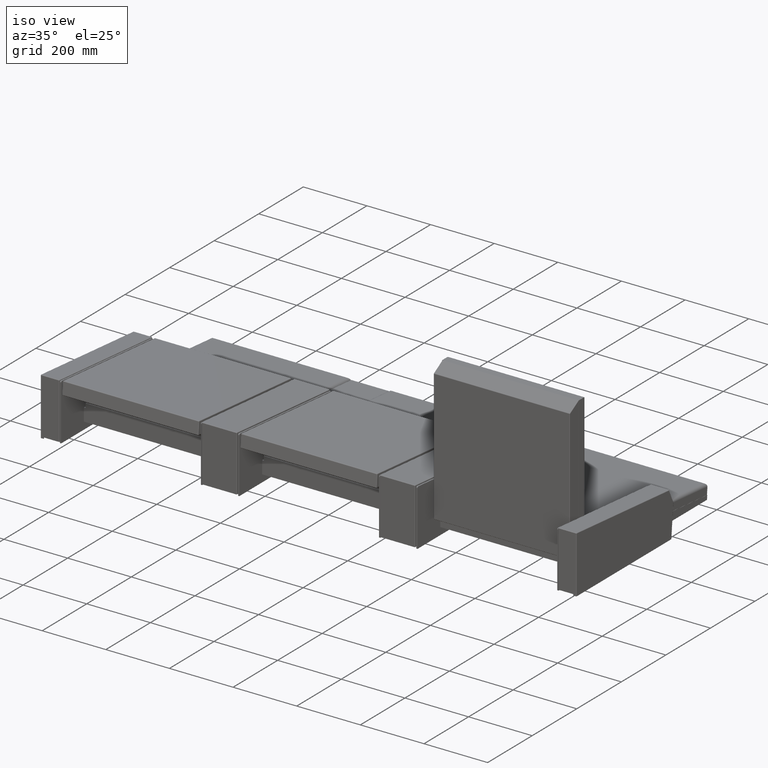
[diagram: clean part render]
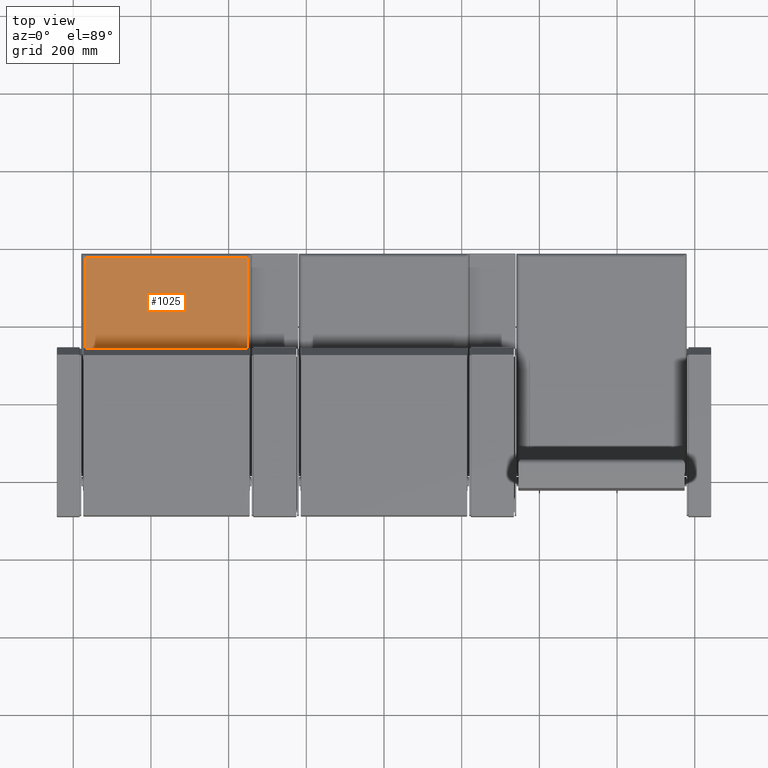
[diagram: tour spotlight — one face highlighted and labeled with its STEP entity id]
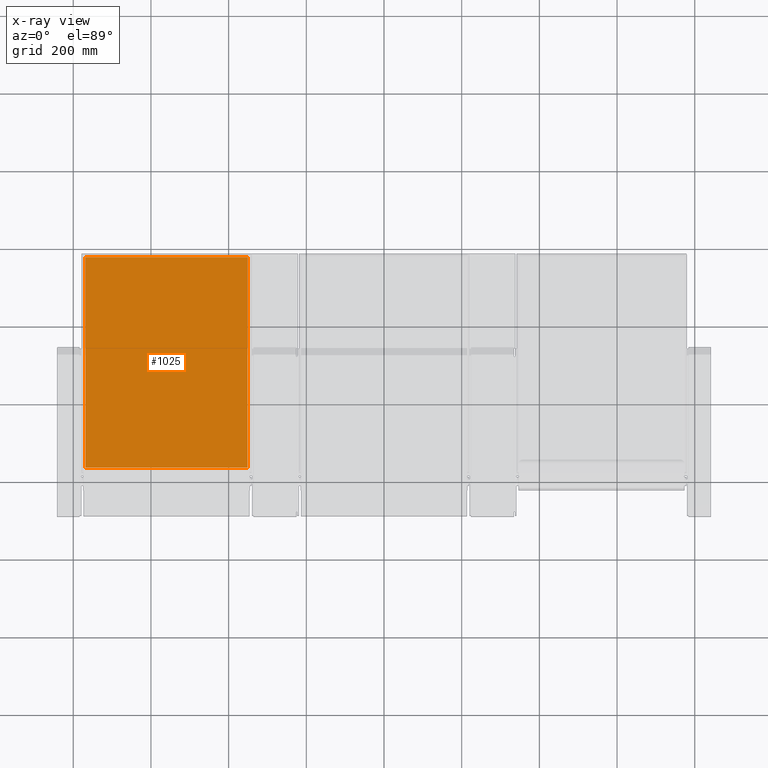
[diagram: x-ray of the same camera — body ghosted, this tour face saturated]
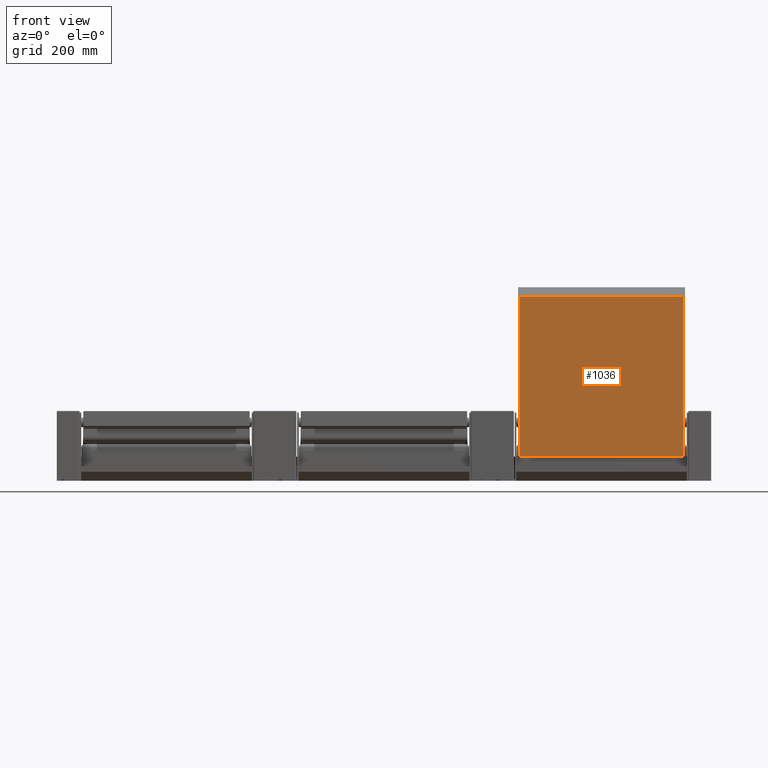
[diagram: tour spotlight — one face highlighted and labeled with its STEP entity id]
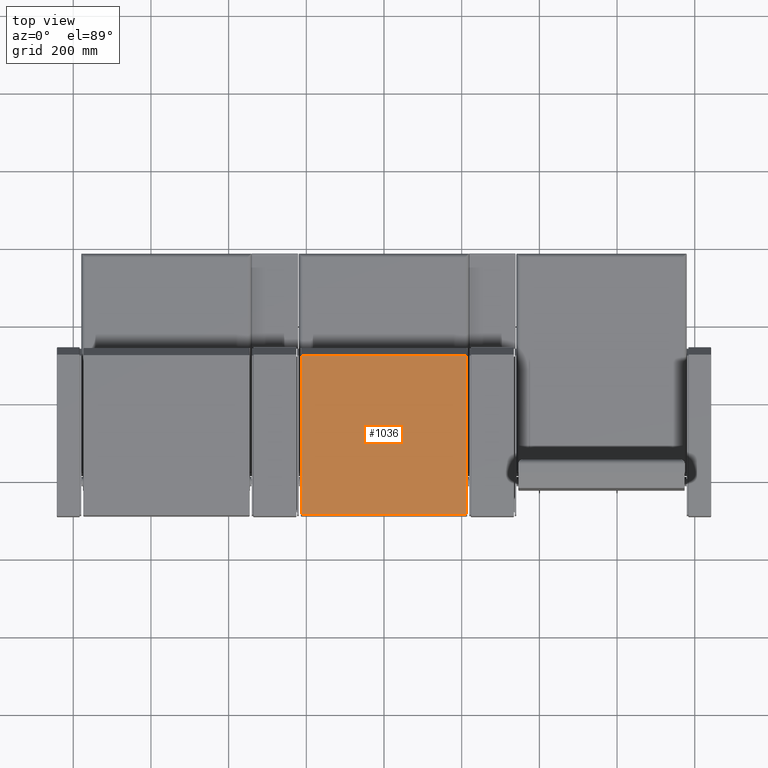
[diagram: tour spotlight — one face highlighted and labeled with its STEP entity id]
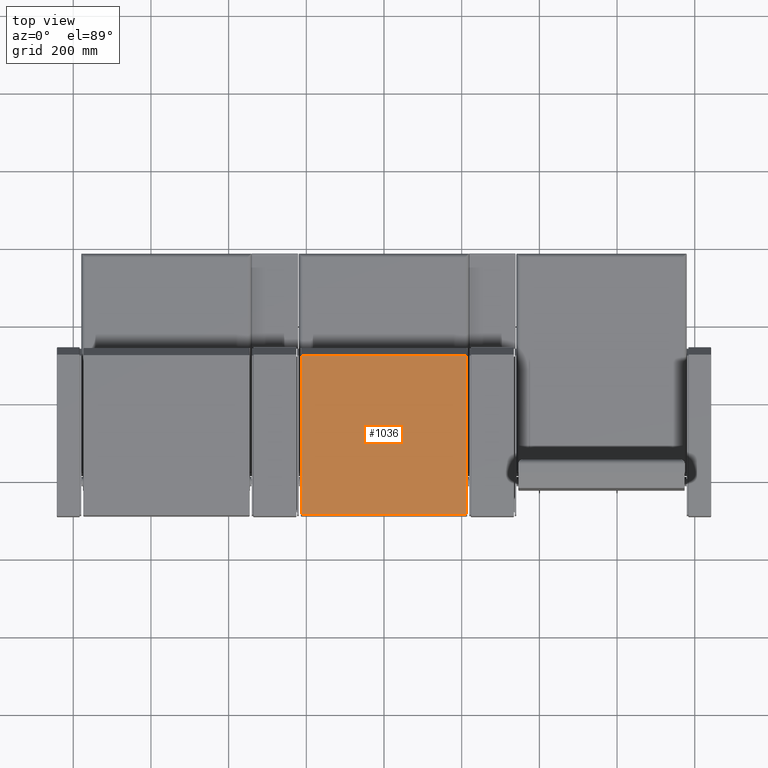
[diagram: tour spotlight — one face highlighted and labeled with its STEP entity id]
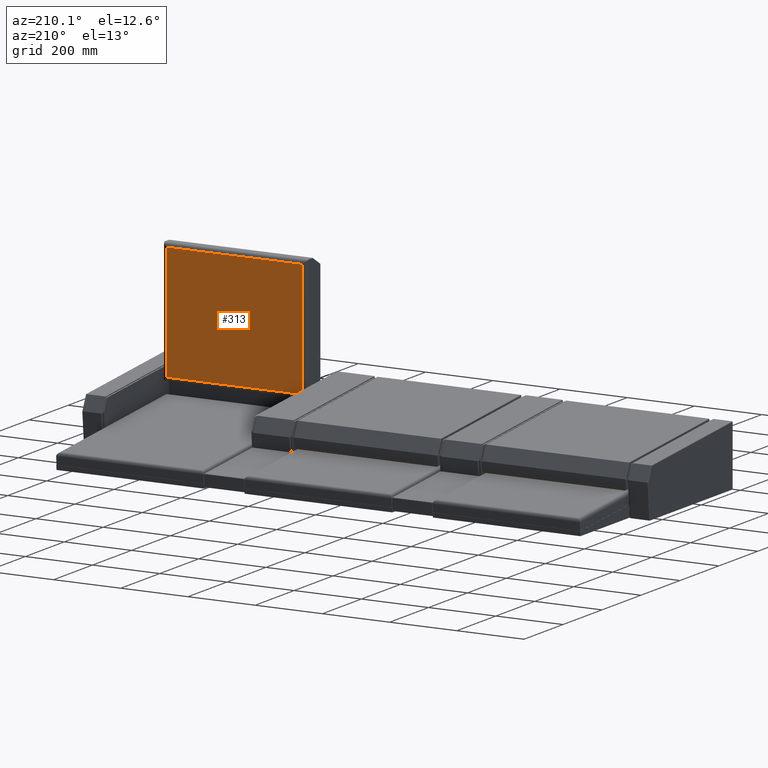
[diagram: tour spotlight — one face highlighted and labeled with its STEP entity id]
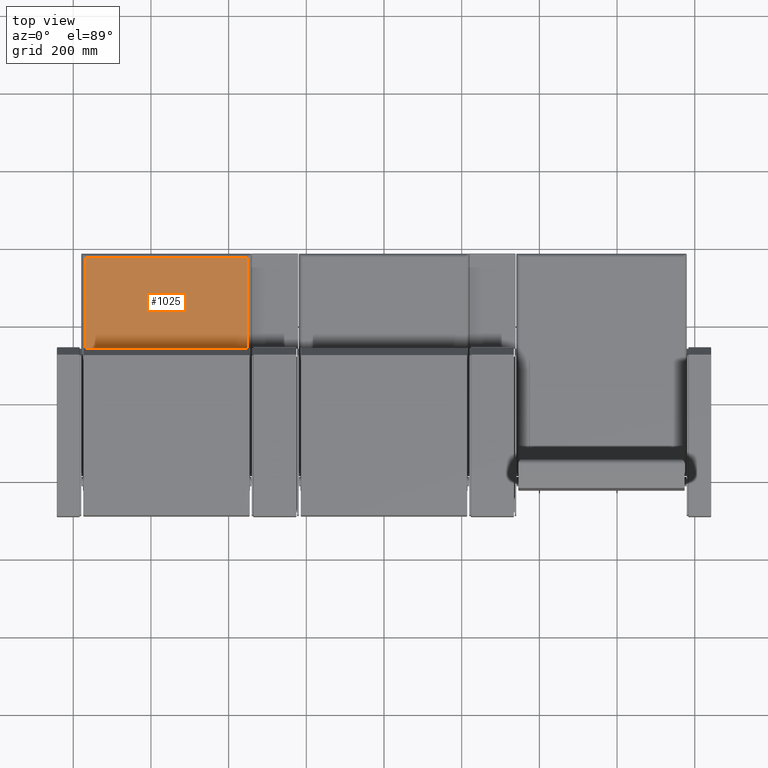
[diagram: tour spotlight — one face highlighted and labeled with its STEP entity id]
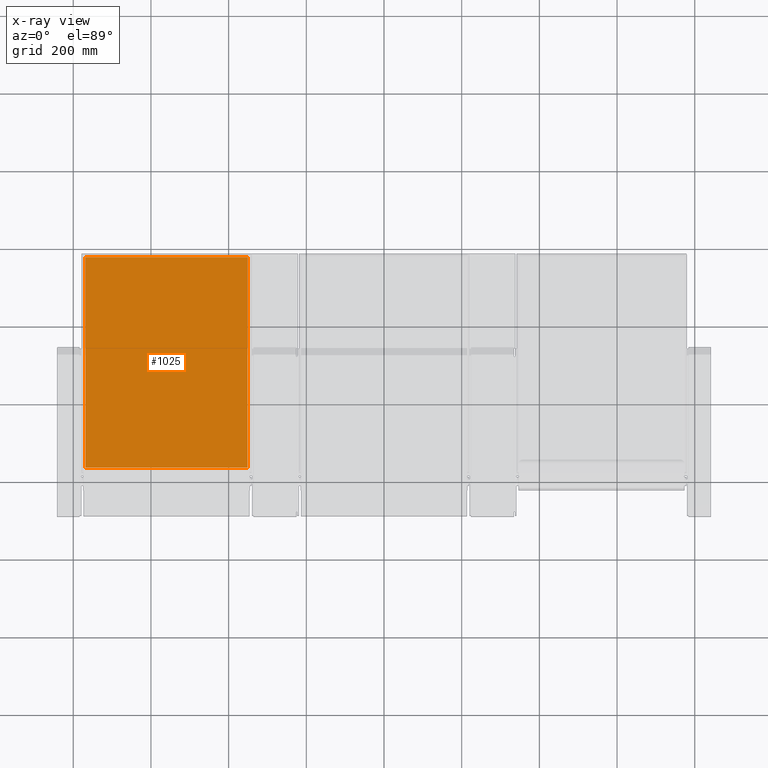
[diagram: x-ray of the same camera — body ghosted, this tour face saturated]
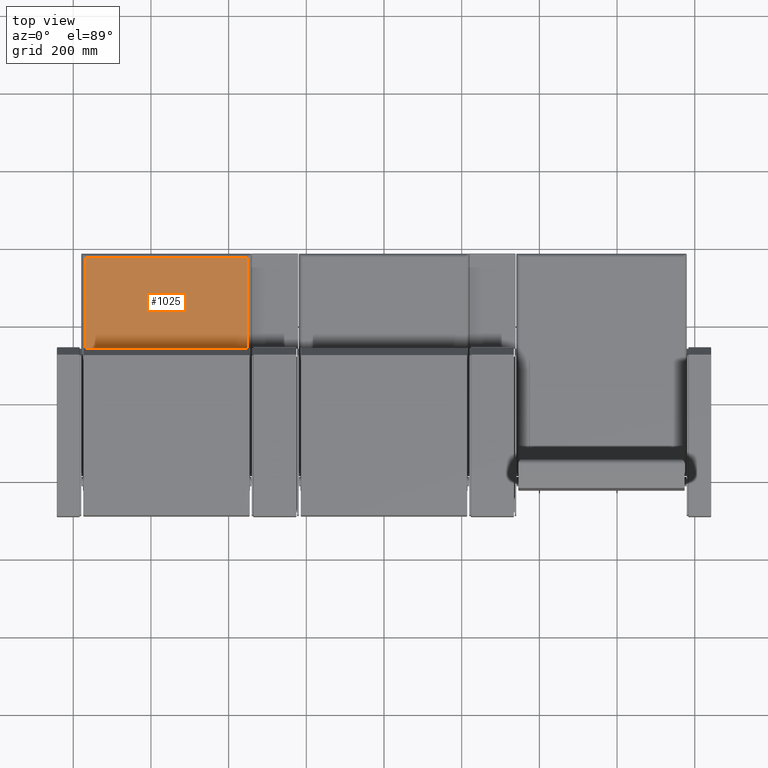
[diagram: tour spotlight — one face highlighted and labeled with its STEP entity id]
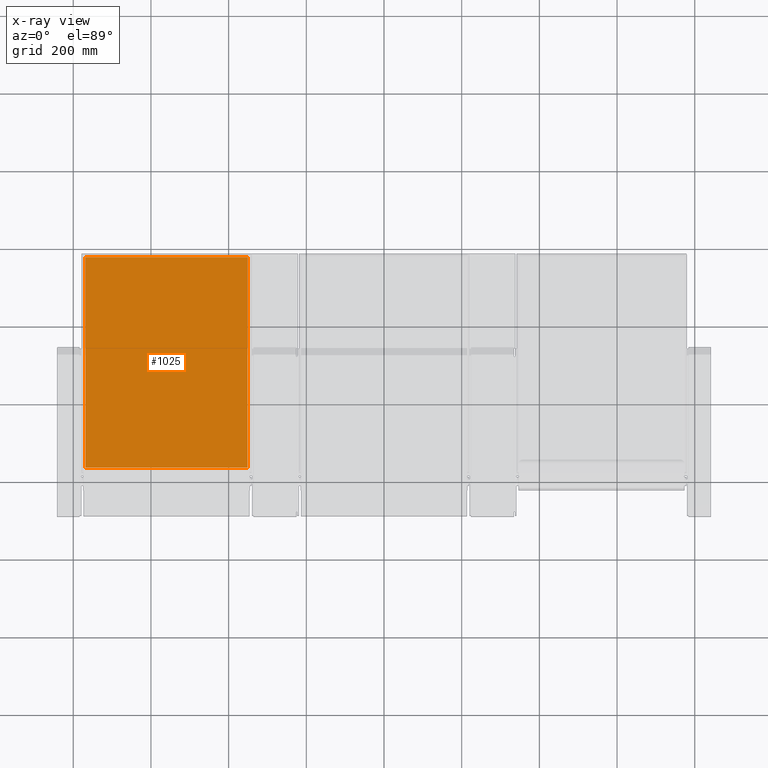
[diagram: x-ray of the same camera — body ghosted, this tour face saturated]
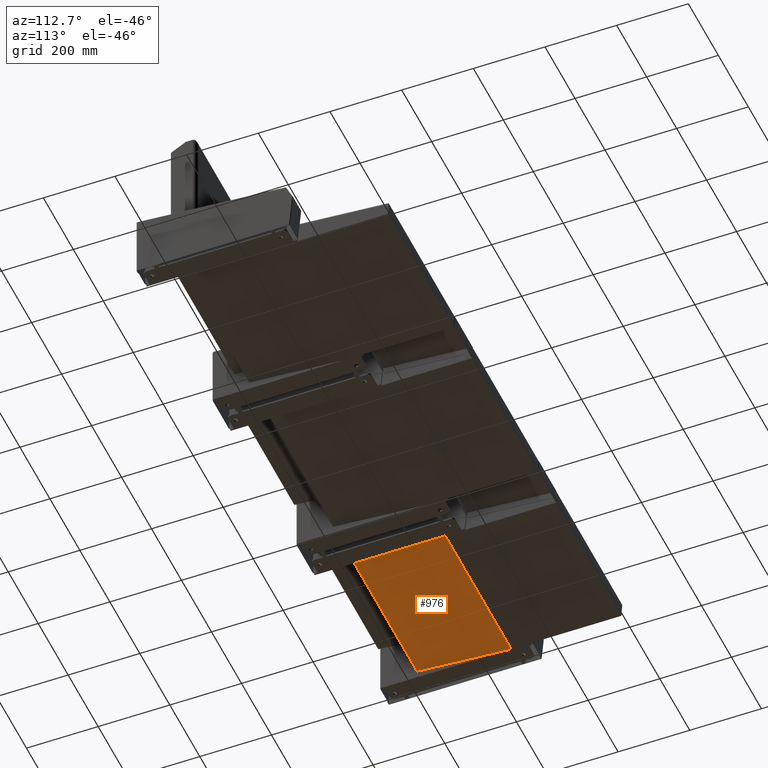
[diagram: tour spotlight — one face highlighted and labeled with its STEP entity id]
A machine part: a face-by-face anatomy tour. The part has 567 B-rep faces; the first image is the clean iso view, then the 8 largest visible faces are spotlighted one at a time (largest first), each with its STEP entity span.

Face 1 — top view, entity #1025. An x-ray twin of the same camera follows (body ghosted, this face saturated) — the face is partly hidden behind the body. In plain terms, the highlighted planar face has unit normal (-0, 0.0872, 0.9962).
Definition (entity closure, byte-faithful):
#481 = EDGE_CURVE ( 'NONE', #6746, #6744, #3420, .T. ) ;
#482 = EDGE_CURVE ( 'NONE', #6744, #6749, #3418, .T. ) ;
#483 = EDGE_CURVE ( 'NONE', #6749, #6750, #3424, .T. ) ;
#484 = EDGE_CURVE ( 'NONE', #6750, #6746, #3426, .T. ) ;
#565 = EDGE_LOOP ( 'NONE', ( #3962, #3961, #3960, #3959 ) ) ;
#1025 = ADVANCED_FACE ( 'NONE', ( #3571 ), #5701, .T. ) ;
#1562 = CARTESIAN_POINT ( 'NONE',  ( 209.0000000000000300, 563.7337545363255900, -16.19425812990180400 ) ) ;
#1564 = CARTESIAN_POINT ( 'NONE',  ( 209.0000000000000000, 20.80764407632419800, 31.30562166756982400 ) ) ;
#1567 = CARTESIAN_POINT ( 'NONE',  ( -208.9999999999999700, 563.7337545363254800, -16.19425812990179700 ) ) ;
#1568 = CARTESIAN_POINT ( 'NONE',  ( -209.0000000000000000, 20.80764407632414100, 31.30562166756982400 ) ) ;
#1900 = CARTESIAN_POINT ( 'NONE',  ( -218.9999999999999700, 563.7337545363254800, -16.19425812990179400 ) ) ;
#1907 = CARTESIAN_POINT ( 'NONE',  ( 209.0000000000000300, 573.6957015172432600, -17.06581555737836500 ) ) ;
#1909 = DIRECTION ( 'NONE',  ( 4.912491259403347100E-017, 0.9961946980917458800, -0.08715574274765436300 ) ) ;
#1910 = DIRECTION ( 'NONE',  ( -1.000000000000000000, -2.534755763984375800E-016, 1.584222352490234900E-017 ) ) ;
#1911 = CARTESIAN_POINT ( 'NONE',  ( -209.0000000000000000, 10.84569709540668500, 32.17717909504637000 ) ) ;
#1912 = DIRECTION ( 'NONE',  ( -4.912491259403347100E-017, -0.9961946980917458800, 0.08715574274765436300 ) ) ;
#1913 = CARTESIAN_POINT ( 'NONE',  ( 219.0000000000000000, 20.80764407632419800, 31.30562166756982400 ) ) ;
#1914 = DIRECTION ( 'NONE',  ( 1.000000000000000000, 1.272921564986252900E-016, -4.802604758737772900E-018 ) ) ;
#3418 = LINE ( 'NONE', #1900, #3425 ) ;
#3420 = LINE ( 'NONE', #1907, #3423 ) ;
#3423 = VECTOR ( 'NONE', #1909, 1000.000000000000100 ) ;
#3424 = LINE ( 'NONE', #1911, #3427 ) ;
#3425 = VECTOR ( 'NONE', #1910, 1000.000000000000000 ) ;
#3426 = LINE ( 'NONE', #1913, #3429 ) ;
#3427 = VECTOR ( 'NONE', #1912, 1000.000000000000100 ) ;
#3429 = VECTOR ( 'NONE', #1914, 1000.000000000000000 ) ;
#3571 = FACE_OUTER_BOUND ( 'NONE', #565, .T. ) ;
#3959 = ORIENTED_EDGE ( 'NONE', *, *, #484, .T. ) ;
#3960 = ORIENTED_EDGE ( 'NONE', *, *, #483, .T. ) ;
#3961 = ORIENTED_EDGE ( 'NONE', *, *, #482, .T. ) ;
#3962 = ORIENTED_EDGE ( 'NONE', *, *, #481, .T. ) ;
#4747 = AXIS2_PLACEMENT_3D ( 'NONE', #5720, #5721, #5722 ) ;
#5701 = PLANE ( 'NONE',  #4747 ) ;
#5720 = CARTESIAN_POINT ( 'NONE',  ( 0.0000000000000000000, 2.876139510672594200, 32.87442503702761300 ) ) ;
#5721 = DIRECTION ( 'NONE',  ( -6.309913047903587400E-018, 0.08715574274765436300, 0.9961946980917458800 ) ) ;
#5722 = DIRECTION ( 'NONE',  ( 0.0000000000000000000, -0.9961946980917458800, 0.08715574274765436300 ) ) ;
#6744 = VERTEX_POINT ( 'NONE', #1562 ) ;
#6746 = VERTEX_POINT ( 'NONE', #1564 ) ;
#6749 = VERTEX_POINT ( 'NONE', #1567 ) ;
#6750 = VERTEX_POINT ( 'NONE', #1568 ) ;

Face 2 — front view, entity #1036. In plain terms, the highlighted planar face has unit normal (0, 1, 0).
Definition (entity closure, byte-faithful):
#1036 = ADVANCED_FACE ( 'NONE', ( #3607 ), #5781, .F. ) ;
#1147 = ORIENTED_EDGE ( 'NONE', *, *, #3193, .T. ) ;
#1148 = ORIENTED_EDGE ( 'NONE', *, *, #3192, .T. ) ;
#1149 = ORIENTED_EDGE ( 'NONE', *, *, #3191, .T. ) ;
#1150 = ORIENTED_EDGE ( 'NONE', *, *, #3190, .T. ) ;
#1394 = CARTESIAN_POINT ( 'NONE',  ( -212.0000000000000000, -21.99999999999998900, -87.00000000000000000 ) ) ;
#1412 = CARTESIAN_POINT ( 'NONE',  ( 212.0000000000000000, -21.99999999999998900, -87.00000000000000000 ) ) ;
#1416 = CARTESIAN_POINT ( 'NONE',  ( 212.0000000000000000, -22.00000000000003900, 324.2153903091735900 ) ) ;
#1417 = CARTESIAN_POINT ( 'NONE',  ( -212.0000000000000000, -22.00000000000003900, 324.2153903091735900 ) ) ;
#2613 = CARTESIAN_POINT ( 'NONE',  ( 212.0000000000000000, -22.00000000000003900, 325.3700908475528300 ) ) ;
#2621 = CARTESIAN_POINT ( 'NONE',  ( 214.0000000000000000, -21.99999999999998900, -87.00000000000000000 ) ) ;
#2623 = DIRECTION ( 'NONE',  ( 1.000000000000000000, -0.0000000000000000000, -0.0000000000000000000 ) ) ;
#2624 = DIRECTION ( 'NONE',  ( -0.0000000000000000000, -1.255923277977377400E-016, 1.000000000000000000 ) ) ;
#2625 = CARTESIAN_POINT ( 'NONE',  ( 214.0000000000000000, -22.00000000000003900, 324.2153903091735900 ) ) ;
#2626 = DIRECTION ( 'NONE',  ( -1.000000000000000000, 0.0000000000000000000, 0.0000000000000000000 ) ) ;
#2627 = CARTESIAN_POINT ( 'NONE',  ( -212.0000000000000000, -21.99999999999998900, -89.00000000000000000 ) ) ;
#2628 = DIRECTION ( 'NONE',  ( 0.0000000000000000000, 1.255923277977377400E-016, -1.000000000000000000 ) ) ;
#3190 = EDGE_CURVE ( 'NONE', #6575, #6593, #4243, .T. ) ;
#3191 = EDGE_CURVE ( 'NONE', #6593, #6597, #4236, .T. ) ;
#3192 = EDGE_CURVE ( 'NONE', #6597, #6598, #4247, .T. ) ;
#3193 = EDGE_CURVE ( 'NONE', #6598, #6575, #4249, .T. ) ;
#3607 = FACE_OUTER_BOUND ( 'NONE', #6850, .T. ) ;
#4236 = LINE ( 'NONE', #2613, #4248 ) ;
#4243 = LINE ( 'NONE', #2621, #4246 ) ;
#4246 = VECTOR ( 'NONE', #2623, 1000.000000000000000 ) ;
#4247 = LINE ( 'NONE', #2625, #4250 ) ;
#4248 = VECTOR ( 'NONE', #2624, 1000.000000000000000 ) ;
#4249 = LINE ( 'NONE', #2627, #4252 ) ;
#4250 = VECTOR ( 'NONE', #2626, 1000.000000000000000 ) ;
#4252 = VECTOR ( 'NONE', #2628, 1000.000000000000000 ) ;
#4773 = AXIS2_PLACEMENT_3D ( 'NONE', #5779, #5783, #5784 ) ;
#5779 = CARTESIAN_POINT ( 'NONE',  ( 214.0000000000000000, -21.99999999999998900, -89.00000000000000000 ) ) ;
#5781 = PLANE ( 'NONE',  #4773 ) ;
#5783 = DIRECTION ( 'NONE',  ( -0.0000000000000000000, 1.000000000000000000, 1.255923277977377400E-016 ) ) ;
#5784 = DIRECTION ( 'NONE',  ( 0.0000000000000000000, -1.255923277977377400E-016, 1.000000000000000000 ) ) ;
#6575 = VERTEX_POINT ( 'NONE', #1394 ) ;
#6593 = VERTEX_POINT ( 'NONE', #1412 ) ;
#6597 = VERTEX_POINT ( 'NONE', #1416 ) ;
#6598 = VERTEX_POINT ( 'NONE', #1417 ) ;
#6850 = EDGE_LOOP ( 'NONE', ( #1150, #1149, #1148, #1147 ) ) ;

Face 3 — top view, entity #1036. In plain terms, the highlighted planar face has unit normal (0, -0.0872, -0.9962).
Definition (entity closure, byte-faithful):
#1036 = ADVANCED_FACE ( 'NONE', ( #3607 ), #5781, .F. ) ;
#1147 = ORIENTED_EDGE ( 'NONE', *, *, #3193, .T. ) ;
#1148 = ORIENTED_EDGE ( 'NONE', *, *, #3192, .T. ) ;
#1149 = ORIENTED_EDGE ( 'NONE', *, *, #3191, .T. ) ;
#1150 = ORIENTED_EDGE ( 'NONE', *, *, #3190, .T. ) ;
#1394 = CARTESIAN_POINT ( 'NONE',  ( -212.0000000000000000, -21.99999999999998900, -87.00000000000000000 ) ) ;
#1412 = CARTESIAN_POINT ( 'NONE',  ( 212.0000000000000000, -21.99999999999998900, -87.00000000000000000 ) ) ;
#1416 = CARTESIAN_POINT ( 'NONE',  ( 212.0000000000000000, -22.00000000000003900, 324.2153903091735900 ) ) ;
#1417 = CARTESIAN_POINT ( 'NONE',  ( -212.0000000000000000, -22.00000000000003900, 324.2153903091735900 ) ) ;
#2613 = CARTESIAN_POINT ( 'NONE',  ( 212.0000000000000000, -22.00000000000003900, 325.3700908475528300 ) ) ;
#2621 = CARTESIAN_POINT ( 'NONE',  ( 214.0000000000000000, -21.99999999999998900, -87.00000000000000000 ) ) ;
#2623 = DIRECTION ( 'NONE',  ( 1.000000000000000000, -0.0000000000000000000, -0.0000000000000000000 ) ) ;
#2624 = DIRECTION ( 'NONE',  ( -0.0000000000000000000, -1.255923277977377400E-016, 1.000000000000000000 ) ) ;
#2625 = CARTESIAN_POINT ( 'NONE',  ( 214.0000000000000000, -22.00000000000003900, 324.2153903091735900 ) ) ;
#2626 = DIRECTION ( 'NONE',  ( -1.000000000000000000, 0.0000000000000000000, 0.0000000000000000000 ) ) ;
#2627 = CARTESIAN_POINT ( 'NONE',  ( -212.0000000000000000, -21.99999999999998900, -89.00000000000000000 ) ) ;
#2628 = DIRECTION ( 'NONE',  ( 0.0000000000000000000, 1.255923277977377400E-016, -1.000000000000000000 ) ) ;
#3190 = EDGE_CURVE ( 'NONE', #6575, #6593, #4243, .T. ) ;
#3191 = EDGE_CURVE ( 'NONE', #6593, #6597, #4236, .T. ) ;
#3192 = EDGE_CURVE ( 'NONE', #6597, #6598, #4247, .T. ) ;
#3193 = EDGE_CURVE ( 'NONE', #6598, #6575, #4249, .T. ) ;
#3607 = FACE_OUTER_BOUND ( 'NONE', #6850, .T. ) ;
#4236 = LINE ( 'NONE', #2613, #4248 ) ;
#4243 = LINE ( 'NONE', #2621, #4246 ) ;
#4246 = VECTOR ( 'NONE', #2623, 1000.000000000000000 ) ;
#4247 = LINE ( 'NONE', #2625, #4250 ) ;
#4248 = VECTOR ( 'NONE', #2624, 1000.000000000000000 ) ;
#4249 = LINE ( 'NONE', #2627, #4252 ) ;
#4250 = VECTOR ( 'NONE', #2626, 1000.000000000000000 ) ;
#4252 = VECTOR ( 'NONE', #2628, 1000.000000000000000 ) ;
#4773 = AXIS2_PLACEMENT_3D ( 'NONE', #5779, #5783, #5784 ) ;
#5779 = CARTESIAN_POINT ( 'NONE',  ( 214.0000000000000000, -21.99999999999998900, -89.00000000000000000 ) ) ;
#5781 = PLANE ( 'NONE',  #4773 ) ;
#5783 = DIRECTION ( 'NONE',  ( -0.0000000000000000000, 1.000000000000000000, 1.255923277977377400E-016 ) ) ;
#5784 = DIRECTION ( 'NONE',  ( 0.0000000000000000000, -1.255923277977377400E-016, 1.000000000000000000 ) ) ;
#6575 = VERTEX_POINT ( 'NONE', #1394 ) ;
#6593 = VERTEX_POINT ( 'NONE', #1412 ) ;
#6597 = VERTEX_POINT ( 'NONE', #1416 ) ;
#6598 = VERTEX_POINT ( 'NONE', #1417 ) ;
#6850 = EDGE_LOOP ( 'NONE', ( #1150, #1149, #1148, #1147 ) ) ;

Face 4 — top view, entity #1036. In plain terms, the highlighted planar face has unit normal (0, -0.0872, -0.9962).
Definition (entity closure, byte-faithful):
#1036 = ADVANCED_FACE ( 'NONE', ( #3607 ), #5781, .F. ) ;
#1147 = ORIENTED_EDGE ( 'NONE', *, *, #3193, .T. ) ;
#1148 = ORIENTED_EDGE ( 'NONE', *, *, #3192, .T. ) ;
#1149 = ORIENTED_EDGE ( 'NONE', *, *, #3191, .T. ) ;
#1150 = ORIENTED_EDGE ( 'NONE', *, *, #3190, .T. ) ;
#1394 = CARTESIAN_POINT ( 'NONE',  ( -212.0000000000000000, -21.99999999999998900, -87.00000000000000000 ) ) ;
#1412 = CARTESIAN_POINT ( 'NONE',  ( 212.0000000000000000, -21.99999999999998900, -87.00000000000000000 ) ) ;
#1416 = CARTESIAN_POINT ( 'NONE',  ( 212.0000000000000000, -22.00000000000003900, 324.2153903091735900 ) ) ;
#1417 = CARTESIAN_POINT ( 'NONE',  ( -212.0000000000000000, -22.00000000000003900, 324.2153903091735900 ) ) ;
#2613 = CARTESIAN_POINT ( 'NONE',  ( 212.0000000000000000, -22.00000000000003900, 325.3700908475528300 ) ) ;
#2621 = CARTESIAN_POINT ( 'NONE',  ( 214.0000000000000000, -21.99999999999998900, -87.00000000000000000 ) ) ;
#2623 = DIRECTION ( 'NONE',  ( 1.000000000000000000, -0.0000000000000000000, -0.0000000000000000000 ) ) ;
#2624 = DIRECTION ( 'NONE',  ( -0.0000000000000000000, -1.255923277977377400E-016, 1.000000000000000000 ) ) ;
#2625 = CARTESIAN_POINT ( 'NONE',  ( 214.0000000000000000, -22.00000000000003900, 324.2153903091735900 ) ) ;
#2626 = DIRECTION ( 'NONE',  ( -1.000000000000000000, 0.0000000000000000000, 0.0000000000000000000 ) ) ;
#2627 = CARTESIAN_POINT ( 'NONE',  ( -212.0000000000000000, -21.99999999999998900, -89.00000000000000000 ) ) ;
#2628 = DIRECTION ( 'NONE',  ( 0.0000000000000000000, 1.255923277977377400E-016, -1.000000000000000000 ) ) ;
#3190 = EDGE_CURVE ( 'NONE', #6575, #6593, #4243, .T. ) ;
#3191 = EDGE_CURVE ( 'NONE', #6593, #6597, #4236, .T. ) ;
#3192 = EDGE_CURVE ( 'NONE', #6597, #6598, #4247, .T. ) ;
#3193 = EDGE_CURVE ( 'NONE', #6598, #6575, #4249, .T. ) ;
#3607 = FACE_OUTER_BOUND ( 'NONE', #6850, .T. ) ;
#4236 = LINE ( 'NONE', #2613, #4248 ) ;
#4243 = LINE ( 'NONE', #2621, #4246 ) ;
#4246 = VECTOR ( 'NONE', #2623, 1000.000000000000000 ) ;
#4247 = LINE ( 'NONE', #2625, #4250 ) ;
#4248 = VECTOR ( 'NONE', #2624, 1000.000000000000000 ) ;
#4249 = LINE ( 'NONE', #2627, #4252 ) ;
#4250 = VECTOR ( 'NONE', #2626, 1000.000000000000000 ) ;
#4252 = VECTOR ( 'NONE', #2628, 1000.000000000000000 ) ;
#4773 = AXIS2_PLACEMENT_3D ( 'NONE', #5779, #5783, #5784 ) ;
#5779 = CARTESIAN_POINT ( 'NONE',  ( 214.0000000000000000, -21.99999999999998900, -89.00000000000000000 ) ) ;
#5781 = PLANE ( 'NONE',  #4773 ) ;
#5783 = DIRECTION ( 'NONE',  ( -0.0000000000000000000, 1.000000000000000000, 1.255923277977377400E-016 ) ) ;
#5784 = DIRECTION ( 'NONE',  ( 0.0000000000000000000, -1.255923277977377400E-016, 1.000000000000000000 ) ) ;
#6575 = VERTEX_POINT ( 'NONE', #1394 ) ;
#6593 = VERTEX_POINT ( 'NONE', #1412 ) ;
#6597 = VERTEX_POINT ( 'NONE', #1416 ) ;
#6598 = VERTEX_POINT ( 'NONE', #1417 ) ;
#6850 = EDGE_LOOP ( 'NONE', ( #1150, #1149, #1148, #1147 ) ) ;

Face 5 — auxiliary view, entity #313. In plain terms, the highlighted planar face has unit normal (0, -1, 0).
Definition (entity closure, byte-faithful):
#313 = ADVANCED_FACE ( 'NONE', ( #7791 ), #5438, .F. ) ;
#1117 = ORIENTED_EDGE ( 'NONE', *, *, #3213, .T. ) ;
#1118 = ORIENTED_EDGE ( 'NONE', *, *, #3212, .T. ) ;
#1119 = ORIENTED_EDGE ( 'NONE', *, *, #3211, .T. ) ;
#1120 = ORIENTED_EDGE ( 'NONE', *, *, #3210, .T. ) ;
#1408 = CARTESIAN_POINT ( 'NONE',  ( -202.4999999999999700, 50.99999999999996400, 335.9999999999999400 ) ) ;
#1426 = CARTESIAN_POINT ( 'NONE',  ( 202.4999999999999700, 50.99999999999996400, 335.9999999999999400 ) ) ;
#1428 = CARTESIAN_POINT ( 'NONE',  ( 202.4999999999999700, 50.99999999999996400, -7.000000000000006200 ) ) ;
#1429 = CARTESIAN_POINT ( 'NONE',  ( -202.4999999999999700, 50.99999999999996400, -7.000000000000006200 ) ) ;
#1708 = CARTESIAN_POINT ( 'NONE',  ( 214.5000000000000000, 50.99999999999996400, 348.0000000000000000 ) ) ;
#1709 = DIRECTION ( 'NONE',  ( 0.0000000000000000000, -1.000000000000000000, 0.0000000000000000000 ) ) ;
#1710 = DIRECTION ( 'NONE',  ( 0.0000000000000000000, -0.0000000000000000000, -1.000000000000000000 ) ) ;
#2101 = AXIS2_PLACEMENT_3D ( 'NONE', #1708, #1709, #1710 ) ;
#2657 = CARTESIAN_POINT ( 'NONE',  ( 214.5000000000000000, 50.99999999999996400, 335.9999999999999400 ) ) ;
#2658 = DIRECTION ( 'NONE',  ( 1.000000000000000000, -0.0000000000000000000, -0.0000000000000000000 ) ) ;
#2663 = CARTESIAN_POINT ( 'NONE',  ( 202.4999999999999700, 50.99999999999996400, -19.00000000000001800 ) ) ;
#2668 = DIRECTION ( 'NONE',  ( -0.0000000000000000000, -0.0000000000000000000, -1.000000000000000000 ) ) ;
#2669 = CARTESIAN_POINT ( 'NONE',  ( 214.5000000000000000, 50.99999999999996400, -7.000000000000006200 ) ) ;
#2670 = DIRECTION ( 'NONE',  ( -1.000000000000000000, 0.0000000000000000000, 0.0000000000000000000 ) ) ;
#2671 = CARTESIAN_POINT ( 'NONE',  ( -202.4999999999999700, 50.99999999999996400, 348.0000000000000000 ) ) ;
#2672 = DIRECTION ( 'NONE',  ( 0.0000000000000000000, 0.0000000000000000000, 1.000000000000000000 ) ) ;
#3210 = EDGE_CURVE ( 'NONE', #6589, #6607, #4280, .T. ) ;
#3211 = EDGE_CURVE ( 'NONE', #6607, #6609, #4266, .T. ) ;
#3212 = EDGE_CURVE ( 'NONE', #6609, #6610, #4283, .T. ) ;
#3213 = EDGE_CURVE ( 'NONE', #6610, #6589, #4285, .T. ) ;
#4266 = LINE ( 'NONE', #2663, #4284 ) ;
#4280 = LINE ( 'NONE', #2657, #4282 ) ;
#4282 = VECTOR ( 'NONE', #2658, 1000.000000000000000 ) ;
#4283 = LINE ( 'NONE', #2669, #4286 ) ;
#4284 = VECTOR ( 'NONE', #2668, 1000.000000000000000 ) ;
#4285 = LINE ( 'NONE', #2671, #4288 ) ;
#4286 = VECTOR ( 'NONE', #2670, 1000.000000000000000 ) ;
#4288 = VECTOR ( 'NONE', #2672, 1000.000000000000000 ) ;
#5438 = PLANE ( 'NONE',  #2101 ) ;
#6589 = VERTEX_POINT ( 'NONE', #1408 ) ;
#6607 = VERTEX_POINT ( 'NONE', #1426 ) ;
#6609 = VERTEX_POINT ( 'NONE', #1428 ) ;
#6610 = VERTEX_POINT ( 'NONE', #1429 ) ;
#6860 = EDGE_LOOP ( 'NONE', ( #1120, #1119, #1118, #1117 ) ) ;
#7791 = FACE_OUTER_BOUND ( 'NONE', #6860, .T. ) ;

Face 6 — top view, entity #1025. An x-ray twin of the same camera follows (body ghosted, this face saturated) — the face is partly hidden behind the body. In plain terms, the highlighted planar face has unit normal (-0, 0.0872, 0.9962).
Definition (entity closure, byte-faithful):
#481 = EDGE_CURVE ( 'NONE', #6746, #6744, #3420, .T. ) ;
#482 = EDGE_CURVE ( 'NONE', #6744, #6749, #3418, .T. ) ;
#483 = EDGE_CURVE ( 'NONE', #6749, #6750, #3424, .T. ) ;
#484 = EDGE_CURVE ( 'NONE', #6750, #6746, #3426, .T. ) ;
#565 = EDGE_LOOP ( 'NONE', ( #3962, #3961, #3960, #3959 ) ) ;
#1025 = ADVANCED_FACE ( 'NONE', ( #3571 ), #5701, .T. ) ;
#1562 = CARTESIAN_POINT ( 'NONE',  ( 209.0000000000000300, 563.7337545363255900, -16.19425812990180400 ) ) ;
#1564 = CARTESIAN_POINT ( 'NONE',  ( 209.0000000000000000, 20.80764407632419800, 31.30562166756982400 ) ) ;
#1567 = CARTESIAN_POINT ( 'NONE',  ( -208.9999999999999700, 563.7337545363254800, -16.19425812990179700 ) ) ;
#1568 = CARTESIAN_POINT ( 'NONE',  ( -209.0000000000000000, 20.80764407632414100, 31.30562166756982400 ) ) ;
#1900 = CARTESIAN_POINT ( 'NONE',  ( -218.9999999999999700, 563.7337545363254800, -16.19425812990179400 ) ) ;
#1907 = CARTESIAN_POINT ( 'NONE',  ( 209.0000000000000300, 573.6957015172432600, -17.06581555737836500 ) ) ;
#1909 = DIRECTION ( 'NONE',  ( 4.912491259403347100E-017, 0.9961946980917458800, -0.08715574274765436300 ) ) ;
#1910 = DIRECTION ( 'NONE',  ( -1.000000000000000000, -2.534755763984375800E-016, 1.584222352490234900E-017 ) ) ;
#1911 = CARTESIAN_POINT ( 'NONE',  ( -209.0000000000000000, 10.84569709540668500, 32.17717909504637000 ) ) ;
#1912 = DIRECTION ( 'NONE',  ( -4.912491259403347100E-017, -0.9961946980917458800, 0.08715574274765436300 ) ) ;
#1913 = CARTESIAN_POINT ( 'NONE',  ( 219.0000000000000000, 20.80764407632419800, 31.30562166756982400 ) ) ;
#1914 = DIRECTION ( 'NONE',  ( 1.000000000000000000, 1.272921564986252900E-016, -4.802604758737772900E-018 ) ) ;
#3418 = LINE ( 'NONE', #1900, #3425 ) ;
#3420 = LINE ( 'NONE', #1907, #3423 ) ;
#3423 = VECTOR ( 'NONE', #1909, 1000.000000000000100 ) ;
#3424 = LINE ( 'NONE', #1911, #3427 ) ;
#3425 = VECTOR ( 'NONE', #1910, 1000.000000000000000 ) ;
#3426 = LINE ( 'NONE', #1913, #3429 ) ;
#3427 = VECTOR ( 'NONE', #1912, 1000.000000000000100 ) ;
#3429 = VECTOR ( 'NONE', #1914, 1000.000000000000000 ) ;
#3571 = FACE_OUTER_BOUND ( 'NONE', #565, .T. ) ;
#3959 = ORIENTED_EDGE ( 'NONE', *, *, #484, .T. ) ;
#3960 = ORIENTED_EDGE ( 'NONE', *, *, #483, .T. ) ;
#3961 = ORIENTED_EDGE ( 'NONE', *, *, #482, .T. ) ;
#3962 = ORIENTED_EDGE ( 'NONE', *, *, #481, .T. ) ;
#4747 = AXIS2_PLACEMENT_3D ( 'NONE', #5720, #5721, #5722 ) ;
#5701 = PLANE ( 'NONE',  #4747 ) ;
#5720 = CARTESIAN_POINT ( 'NONE',  ( 0.0000000000000000000, 2.876139510672594200, 32.87442503702761300 ) ) ;
#5721 = DIRECTION ( 'NONE',  ( -6.309913047903587400E-018, 0.08715574274765436300, 0.9961946980917458800 ) ) ;
#5722 = DIRECTION ( 'NONE',  ( 0.0000000000000000000, -0.9961946980917458800, 0.08715574274765436300 ) ) ;
#6744 = VERTEX_POINT ( 'NONE', #1562 ) ;
#6746 = VERTEX_POINT ( 'NONE', #1564 ) ;
#6749 = VERTEX_POINT ( 'NONE', #1567 ) ;
#6750 = VERTEX_POINT ( 'NONE', #1568 ) ;

Face 7 — top view, entity #1025. An x-ray twin of the same camera follows (body ghosted, this face saturated) — the face is partly hidden behind the body. In plain terms, the highlighted planar face has unit normal (-0, 0.0872, 0.9962).
Definition (entity closure, byte-faithful):
#481 = EDGE_CURVE ( 'NONE', #6746, #6744, #3420, .T. ) ;
#482 = EDGE_CURVE ( 'NONE', #6744, #6749, #3418, .T. ) ;
#483 = EDGE_CURVE ( 'NONE', #6749, #6750, #3424, .T. ) ;
#484 = EDGE_CURVE ( 'NONE', #6750, #6746, #3426, .T. ) ;
#565 = EDGE_LOOP ( 'NONE', ( #3962, #3961, #3960, #3959 ) ) ;
#1025 = ADVANCED_FACE ( 'NONE', ( #3571 ), #5701, .T. ) ;
#1562 = CARTESIAN_POINT ( 'NONE',  ( 209.0000000000000300, 563.7337545363255900, -16.19425812990180400 ) ) ;
#1564 = CARTESIAN_POINT ( 'NONE',  ( 209.0000000000000000, 20.80764407632419800, 31.30562166756982400 ) ) ;
#1567 = CARTESIAN_POINT ( 'NONE',  ( -208.9999999999999700, 563.7337545363254800, -16.19425812990179700 ) ) ;
#1568 = CARTESIAN_POINT ( 'NONE',  ( -209.0000000000000000, 20.80764407632414100, 31.30562166756982400 ) ) ;
#1900 = CARTESIAN_POINT ( 'NONE',  ( -218.9999999999999700, 563.7337545363254800, -16.19425812990179400 ) ) ;
#1907 = CARTESIAN_POINT ( 'NONE',  ( 209.0000000000000300, 573.6957015172432600, -17.06581555737836500 ) ) ;
#1909 = DIRECTION ( 'NONE',  ( 4.912491259403347100E-017, 0.9961946980917458800, -0.08715574274765436300 ) ) ;
#1910 = DIRECTION ( 'NONE',  ( -1.000000000000000000, -2.534755763984375800E-016, 1.584222352490234900E-017 ) ) ;
#1911 = CARTESIAN_POINT ( 'NONE',  ( -209.0000000000000000, 10.84569709540668500, 32.17717909504637000 ) ) ;
#1912 = DIRECTION ( 'NONE',  ( -4.912491259403347100E-017, -0.9961946980917458800, 0.08715574274765436300 ) ) ;
#1913 = CARTESIAN_POINT ( 'NONE',  ( 219.0000000000000000, 20.80764407632419800, 31.30562166756982400 ) ) ;
#1914 = DIRECTION ( 'NONE',  ( 1.000000000000000000, 1.272921564986252900E-016, -4.802604758737772900E-018 ) ) ;
#3418 = LINE ( 'NONE', #1900, #3425 ) ;
#3420 = LINE ( 'NONE', #1907, #3423 ) ;
#3423 = VECTOR ( 'NONE', #1909, 1000.000000000000100 ) ;
#3424 = LINE ( 'NONE', #1911, #3427 ) ;
#3425 = VECTOR ( 'NONE', #1910, 1000.000000000000000 ) ;
#3426 = LINE ( 'NONE', #1913, #3429 ) ;
#3427 = VECTOR ( 'NONE', #1912, 1000.000000000000100 ) ;
#3429 = VECTOR ( 'NONE', #1914, 1000.000000000000000 ) ;
#3571 = FACE_OUTER_BOUND ( 'NONE', #565, .T. ) ;
#3959 = ORIENTED_EDGE ( 'NONE', *, *, #484, .T. ) ;
#3960 = ORIENTED_EDGE ( 'NONE', *, *, #483, .T. ) ;
#3961 = ORIENTED_EDGE ( 'NONE', *, *, #482, .T. ) ;
#3962 = ORIENTED_EDGE ( 'NONE', *, *, #481, .T. ) ;
#4747 = AXIS2_PLACEMENT_3D ( 'NONE', #5720, #5721, #5722 ) ;
#5701 = PLANE ( 'NONE',  #4747 ) ;
#5720 = CARTESIAN_POINT ( 'NONE',  ( 0.0000000000000000000, 2.876139510672594200, 32.87442503702761300 ) ) ;
#5721 = DIRECTION ( 'NONE',  ( -6.309913047903587400E-018, 0.08715574274765436300, 0.9961946980917458800 ) ) ;
#5722 = DIRECTION ( 'NONE',  ( 0.0000000000000000000, -0.9961946980917458800, 0.08715574274765436300 ) ) ;
#6744 = VERTEX_POINT ( 'NONE', #1562 ) ;
#6746 = VERTEX_POINT ( 'NONE', #1564 ) ;
#6749 = VERTEX_POINT ( 'NONE', #1567 ) ;
#6750 = VERTEX_POINT ( 'NONE', #1568 ) ;

Face 8 — auxiliary view, entity #976. In plain terms, the highlighted planar face has unit normal (0, 0.0872, 0.9962).
Definition (entity closure, byte-faithful):
#358 = EDGE_CURVE ( 'NONE', #6689, #6681, #7885, .T. ) ;
#360 = EDGE_CURVE ( 'NONE', #6681, #6682, #7887, .T. ) ;
#361 = EDGE_CURVE ( 'NONE', #6685, #6682, #7891, .T. ) ;
#362 = EDGE_CURVE ( 'NONE', #6689, #6685, #7893, .T. ) ;
#976 = ADVANCED_FACE ( 'NONE', ( #3495 ), #3761, .F. ) ;
#1499 = CARTESIAN_POINT ( 'NONE',  ( -219.5000000000000000, 1.630301535245939800E-018, -40.15279350173388200 ) ) ;
#1500 = CARTESIAN_POINT ( 'NONE',  ( -219.5000000000000000, 262.2877704774642200, -63.10000000000000100 ) ) ;
#1503 = CARTESIAN_POINT ( 'NONE',  ( 219.5000000000000000, 262.2877704774455800, -63.10000000000000100 ) ) ;
#1507 = CARTESIAN_POINT ( 'NONE',  ( 219.5000000000000000, 1.630301535245939800E-018, -40.15279350173388200 ) ) ;
#2192 = AXIS2_PLACEMENT_3D ( 'NONE', #3762, #3767, #3768 ) ;
#2231 = CARTESIAN_POINT ( 'NONE',  ( -219.5000000000000000, 1.630301535245939800E-018, -40.15279350173388200 ) ) ;
#2235 = CARTESIAN_POINT ( 'NONE',  ( 219.5000000000000000, 1.630301535245939800E-018, -40.15279350173388200 ) ) ;
#2237 = DIRECTION ( 'NONE',  ( -1.000000000000000000, -0.0000000000000000000, -0.0000000000000000000 ) ) ;
#2240 = DIRECTION ( 'NONE',  ( 0.0000000000000000000, 0.9961946980917458800, -0.08715574274765433600 ) ) ;
#2241 = CARTESIAN_POINT ( 'NONE',  ( 219.5000000000000000, 262.2877704774583700, -63.10000000000000100 ) ) ;
#2242 = DIRECTION ( 'NONE',  ( -1.000000000000000000, -0.0000000000000000000, -0.0000000000000000000 ) ) ;
#2243 = CARTESIAN_POINT ( 'NONE',  ( 219.5000000000000000, 1.630301535245939800E-018, -40.15279350173388200 ) ) ;
#2244 = DIRECTION ( 'NONE',  ( 0.0000000000000000000, 0.9961946980917458800, -0.08715574274765433600 ) ) ;
#3495 = FACE_OUTER_BOUND ( 'NONE', #6880, .T. ) ;
#3761 = PLANE ( 'NONE',  #2192 ) ;
#3762 = CARTESIAN_POINT ( 'NONE',  ( 219.5000000000000000, 1.630301535245939800E-018, -40.15279350173388200 ) ) ;
#3767 = DIRECTION ( 'NONE',  ( -0.0000000000000000000, 0.08715574274765433600, 0.9961946980917458800 ) ) ;
#3768 = DIRECTION ( 'NONE',  ( 0.0000000000000000000, -0.9961946980917458800, 0.08715574274765433600 ) ) ;
#6426 = ORIENTED_EDGE ( 'NONE', *, *, #358, .T. ) ;
#6427 = ORIENTED_EDGE ( 'NONE', *, *, #362, .F. ) ;
#6428 = ORIENTED_EDGE ( 'NONE', *, *, #361, .F. ) ;
#6429 = ORIENTED_EDGE ( 'NONE', *, *, #360, .T. ) ;
#6681 = VERTEX_POINT ( 'NONE', #1499 ) ;
#6682 = VERTEX_POINT ( 'NONE', #1500 ) ;
#6685 = VERTEX_POINT ( 'NONE', #1503 ) ;
#6689 = VERTEX_POINT ( 'NONE', #1507 ) ;
#6880 = EDGE_LOOP ( 'NONE', ( #6429, #6428, #6427, #6426 ) ) ;
#7885 = LINE ( 'NONE', #2235, #7888 ) ;
#7887 = LINE ( 'NONE', #2231, #7892 ) ;
#7888 = VECTOR ( 'NONE', #2237, 1000.000000000000000 ) ;
#7891 = LINE ( 'NONE', #2241, #7894 ) ;
#7892 = VECTOR ( 'NONE', #2240, 1000.000000000000000 ) ;
#7893 = LINE ( 'NONE', #2243, #7896 ) ;
#7894 = VECTOR ( 'NONE', #2242, 1000.000000000000000 ) ;
#7896 = VECTOR ( 'NONE', #2244, 1000.000000000000000 ) ;